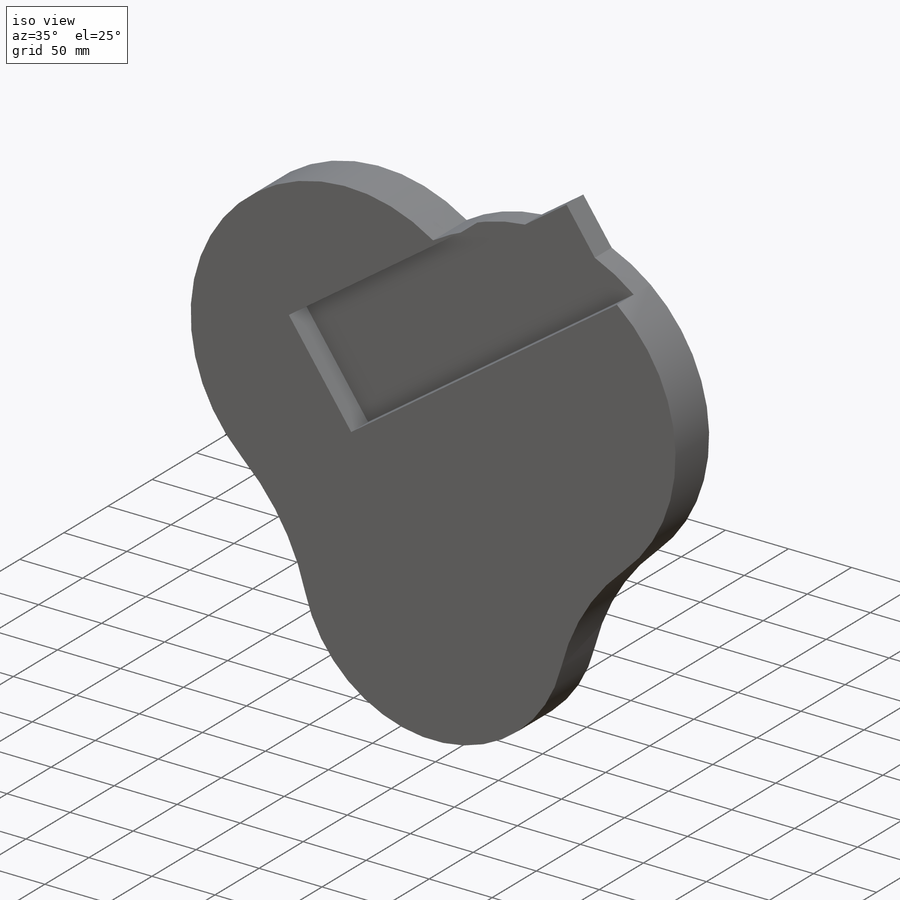
[diagram: iso view]
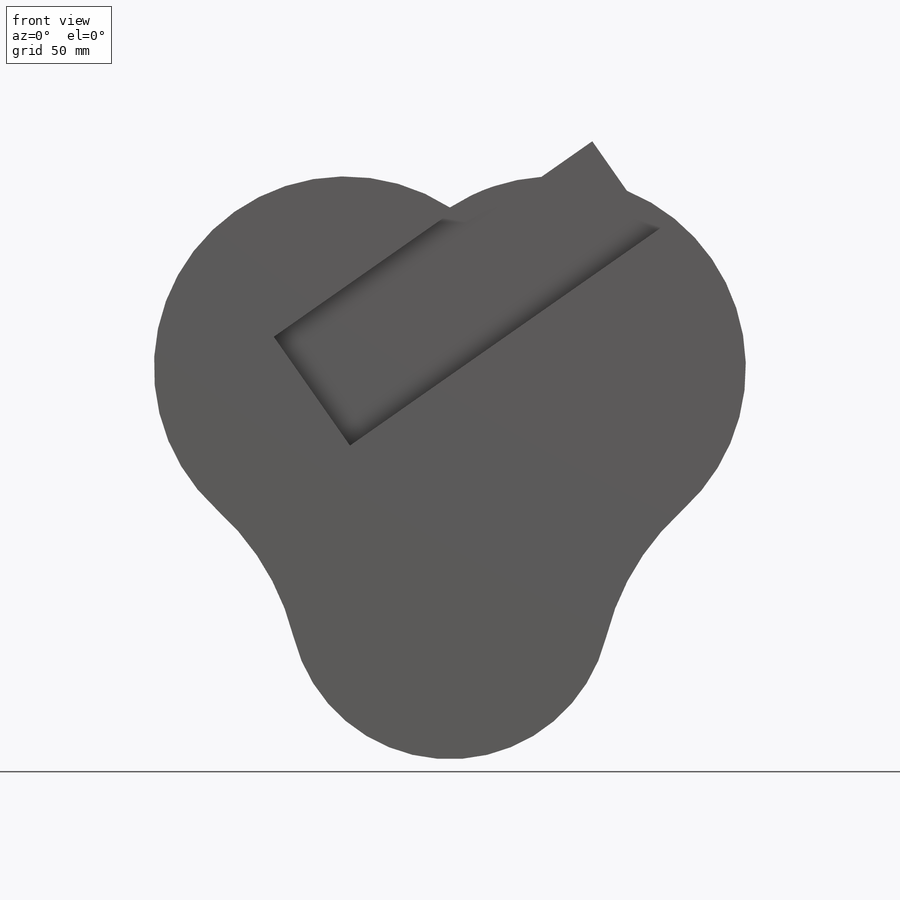
[diagram: front view]
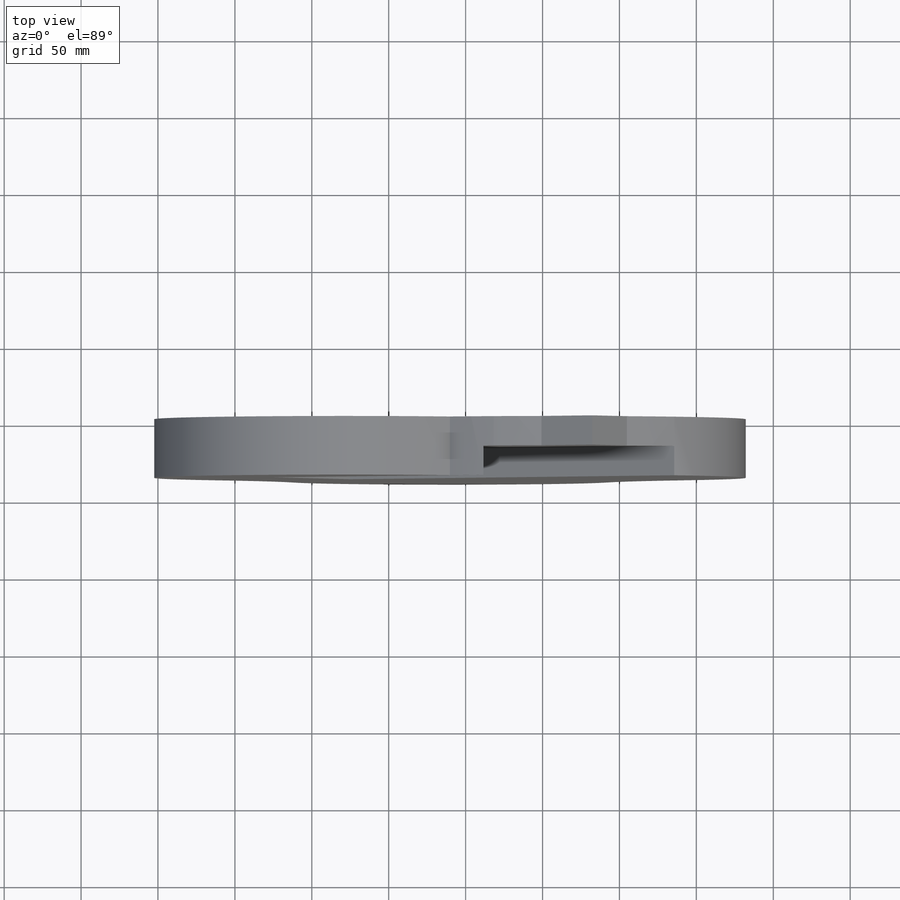
[diagram: top view]
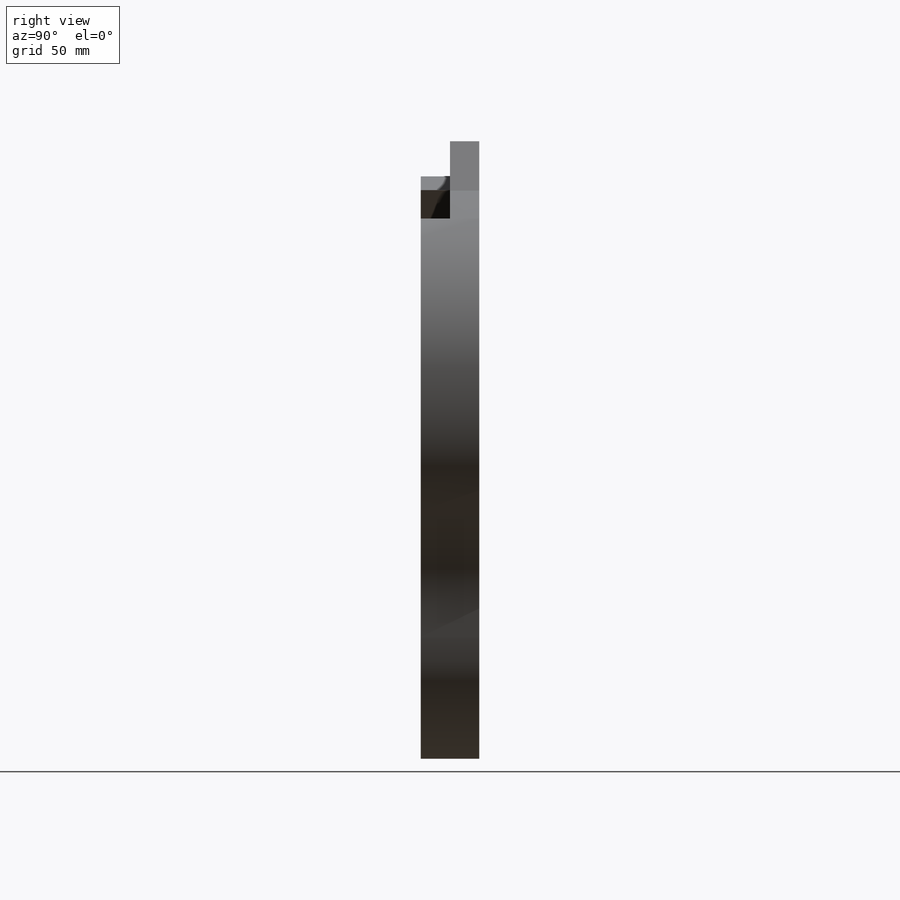
[diagram: right view]
SOLIDWORKS PART (.sldprt)
format: sldprt  version: not decoded by parser v0  size: 189,952 bytes
history: native  units: mm
features: sketch x3, extrude x3, material x1 (+13 scaffold rows collapsed)
feature tree (20):
  scaffold x13  (default folders/planes/origin — collapsed)
  material  "Material <not specified>"
  sketch  "Sketch2"  dims[c1.D5=304.8mm c1.D6=152.4mm c1.D7=304.8mm c2.D6=127.0mm c2.D7=101.6mm c2.D8=~118.40253mm c3.D7=127.0mm c3.D8=127.0mm c3.D9=127.0mm c3.D4=~124.445088mm c4.D9=~104.701563mm c4.D1=177.8mm c4.D2=234.95mm c4.D3=266.7mm c5.D3=35.0deg c5.D4=228.6mm c5.D8=0.0mm c5.D5=86.36mm c5.D6=~135.944578mm c5.D7=203.2mm c6.D4=228.6mm c6.D8=254.0mm c6.D10=~82.533732mm c6.D11=~159.79454mm]
  extrude  "Boss-Extrude1"  Depth=38.1mm
  sketch  "Sketch3"  dims[D1=86.36mm]
  extrude  "Boss-Extrude2"  Depth=19.05mm
  sketch  "Sketch4"  dims[D1=57.15mm D2=76.2mm]
  extrude  "Boss-Extrude3"  [1 undecoded]
decode coverage: 5 of 6 modeling features carry decoded parameters
note: ~ marks probable driven/reference dimensions
note: 1 parameter value undecoded
note: suppression state not decoded; provenance and decode notes live in map.json
